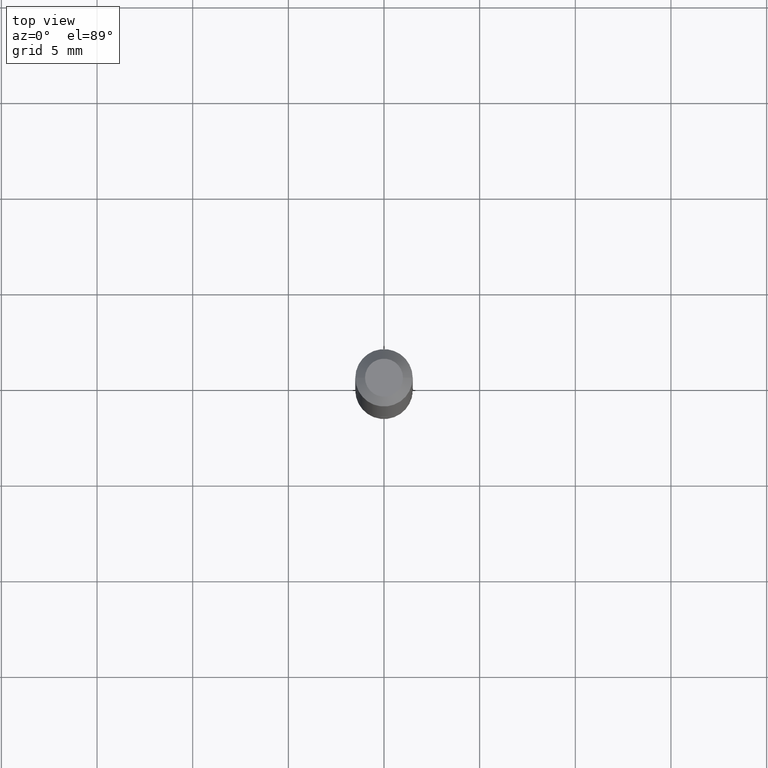
[diagram: clean part render]
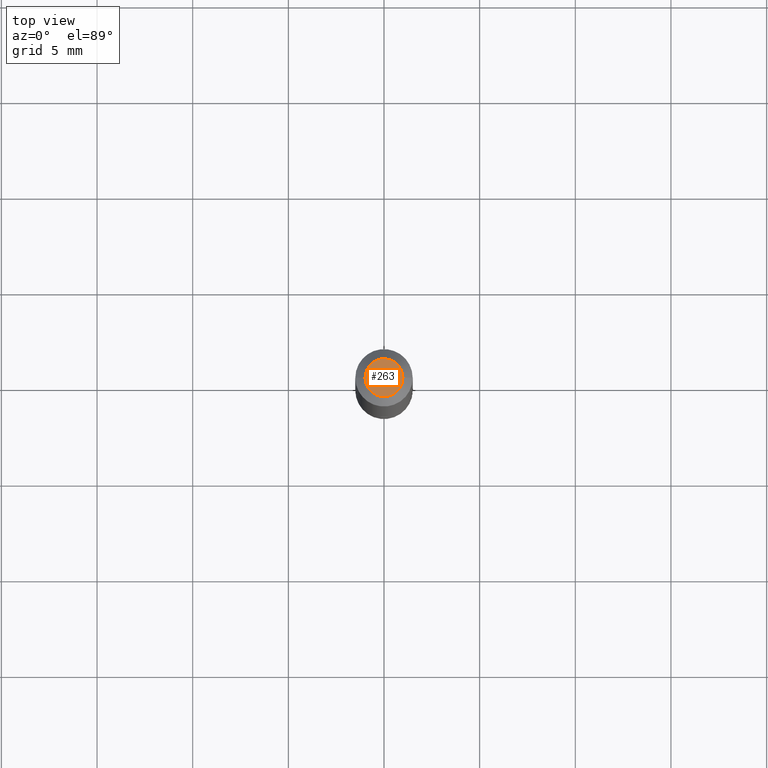
[diagram: same view with one face highlighted and labeled with its STEP entity id]
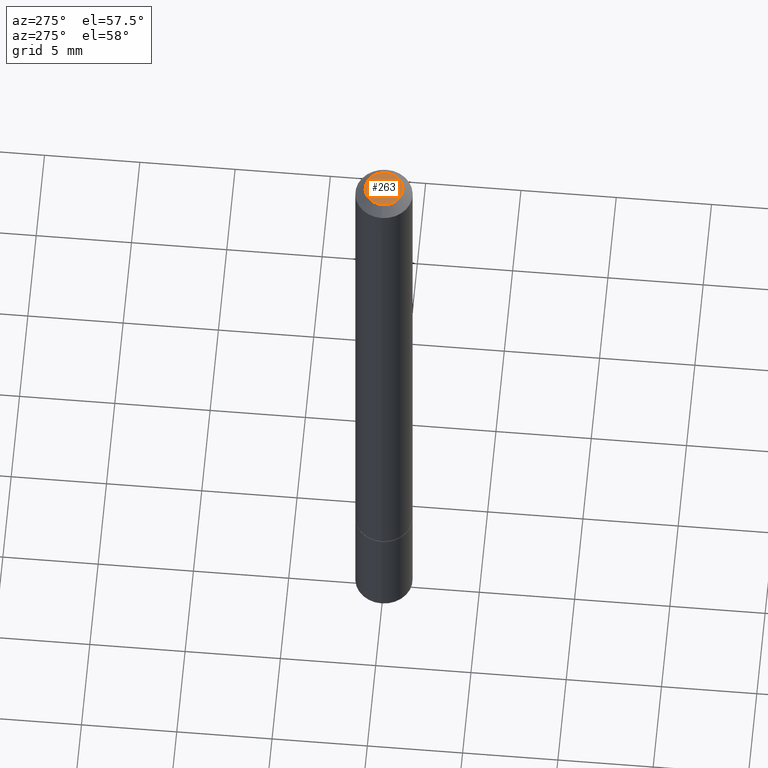
[diagram: same view with one face highlighted and labeled with its STEP entity id]
A machine part, top view. The second image highlights one B-rep face of the part: STEP entity #263.
A second angle (auxiliary view) of the same face is appended — the face is thin or edge-on in the first view.
In plain terms, the highlighted planar face has unit normal (0, -0, -1).
Its self-contained STEP definition (entity closure, byte-faithful):
#27 = DIRECTION ( 'NONE',  ( 2.438088387897960049E-29, -3.491481338843145188E-15, -1.000000000000000000 ) ) ;
#28 = VERTEX_POINT ( 'NONE', #200 ) ;
#44 = AXIS2_PLACEMENT_3D ( 'NONE', #313, #56, #254 ) ;
#56 = DIRECTION ( 'NONE',  ( -2.445468806185136597E-29, 3.491481338843145583E-15, 1.000000000000000000 ) ) ;
#65 = DIRECTION ( 'NONE',  ( -2.445468806185136597E-29, 3.491481338843145583E-15, 1.000000000000000000 ) ) ;
#71 = EDGE_CURVE ( 'NONE', #239, #28, #178, .T. ) ;
#159 = EDGE_LOOP ( 'NONE', ( #250, #270 ) ) ;
#176 = DIRECTION ( 'NONE',  ( 1.000000000000000000, -6.982962677686265922E-15, 4.873707401586876696E-29 ) ) ;
#178 = CIRCLE ( 'NONE', #277, 0.03904999999999989035 ) ;
#197 = CARTESIAN_POINT ( 'NONE',  ( 2.726846925636479293E-16, 0.03904999999999989035, -1.640876774674771079E-16 ) ) ;
#198 = DIRECTION ( 'NONE',  ( -1.000000000000000000, 6.982962677686265922E-15, -4.876176775795935793E-29 ) ) ;
#200 = CARTESIAN_POINT ( 'NONE',  ( -0.03904999999999989035, 3.075995059520788882E-16, -5.549066237130737733E-17 ) ) ;
#204 = CARTESIAN_POINT ( 'NONE',  ( 1.357006838635785746E-45, -1.937446121494581442E-31, -5.549066237130534971E-17 ) ) ;
#224 = CARTESIAN_POINT ( 'NONE',  ( 0.03904999999999989035, -3.714222401791245450E-16, -5.549066237130309406E-17 ) ) ;
#239 = VERTEX_POINT ( 'NONE', #224 ) ;
#250 = ORIENTED_EDGE ( 'NONE', *, *, #306, .T. ) ;
#251 = FACE_OUTER_BOUND ( 'NONE', #159, .T. ) ;
#254 = DIRECTION ( 'NONE',  ( 1.000000000000000000, -6.982962677686265922E-15, 4.873707401586876696E-29 ) ) ;
#263 = ADVANCED_FACE ( 'NONE', ( #251 ), #308, .F. ) ;
#270 = ORIENTED_EDGE ( 'NONE', *, *, #71, .T. ) ;
#277 = AXIS2_PLACEMENT_3D ( 'NONE', #204, #65, #176 ) ;
#284 = AXIS2_PLACEMENT_3D ( 'NONE', #197, #27, #198 ) ;
#305 = CIRCLE ( 'NONE', #44, 0.03904999999999989035 ) ;
#306 = EDGE_CURVE ( 'NONE', #28, #239, #305, .T. ) ;
#308 = PLANE ( 'NONE',  #284 ) ;
#313 = CARTESIAN_POINT ( 'NONE',  ( 1.357006838635785746E-45, -1.937446121494581442E-31, -5.549066237130534971E-17 ) ) ;